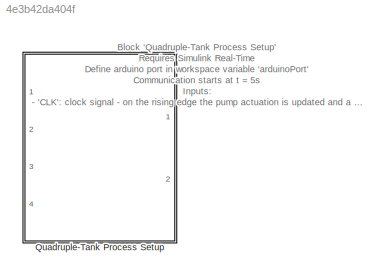
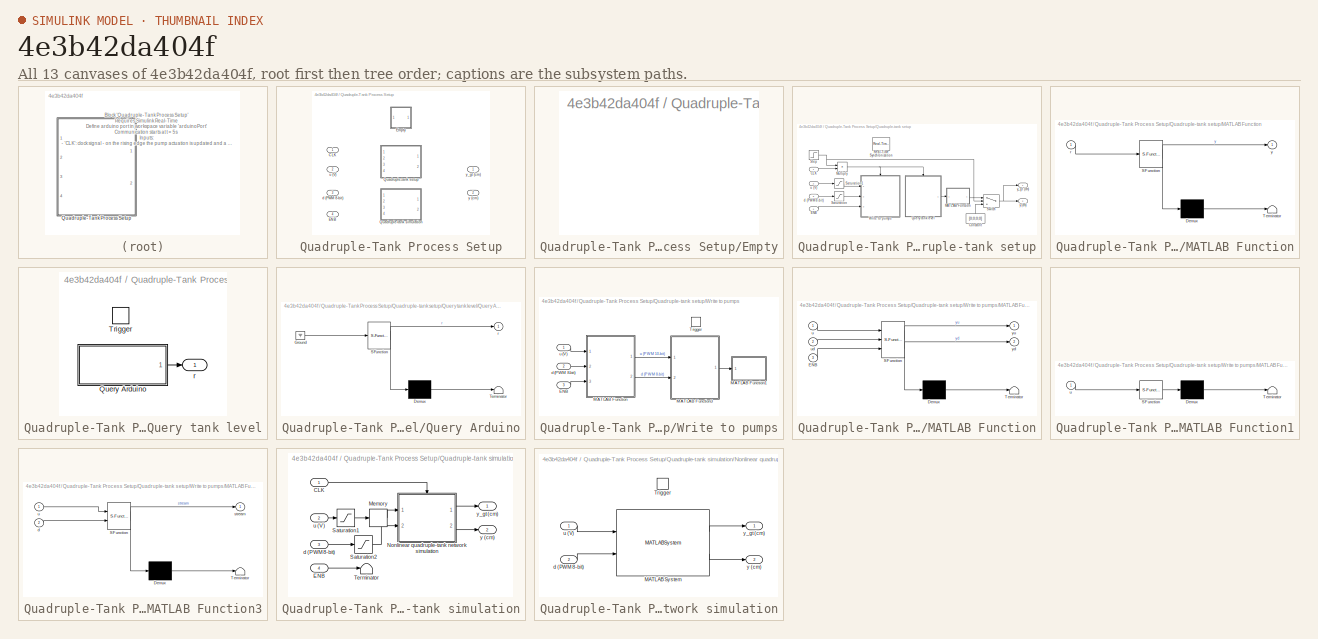
[diagram: thumbnail index - all 13 canvases of the model, root first then tree order]
MODEL slx_4e3b42da404f
KIND model
CONFIG AbsTol = auto
CONFIG EnableMultiTasking = off
CONFIG FixedStep = 0.5
CONFIG MaxStep = auto
CONFIG MinStep = auto
CONFIG RelTol = 1e-3
CONFIG SampleTimeConstraint = Unconstrained
CONFIG SolverName = FixedStepAuto
CONFIG StartTime = 0.0
CONFIG StopTime = inf
BLOCK [SubSystem] Quadruple-Tank Process Setup
  InitFcn = % Load parameters\ncte = quadrupleLoadParameters();\n% Select simulation mode if unspecified\nif ~exist('experimentalSetup')\nexperimentalSetup = false;\nend\nif experimentalSetup\nif exist('arduinoPort')\nif ~isempty(instrfind)\nfclose(instrfind);\ndelete(instrfind);\nend\narduino = serial(arduinoPort,...\n                'BaudRate',9600,...\n                'ByteOrder','bigEndian',...\n                'DataBit...<+223ch>
  Ports = [4, 2]
  RequestExecContextInheritance = off
  StopFcn = if experimentalSetup\nfclose(arduino);\nend
  Variant = on
BLOCK [Inport] Quadruple-Tank Process Setup/CLK
BLOCK [Inport] Quadruple-Tank Process Setup/ENB
  Port = 4
BLOCK [SubSystem] Quadruple-Tank Process Setup/Empty
  Ports = []
  RequestExecContextInheritance = off
  VariantControl = %
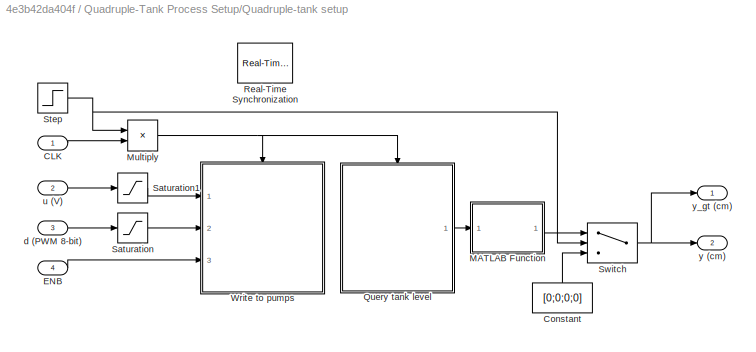
BLOCK [SubSystem] Quadruple-Tank Process Setup/Quadruple-tank setup
  Ports = [4, 2]
  RequestExecContextInheritance = off
  VariantControl = experimentalSetup == true
BLOCK [Inport] Quadruple-Tank Process Setup/Quadruple-tank setup/CLK
BLOCK [Constant] Quadruple-Tank Process Setup/Quadruple-tank setup/Constant
  NameLocation = right
  Value = [0;0;0;0]
BLOCK [Inport] Quadruple-Tank Process Setup/Quadruple-tank setup/ENB
  Port = 4
BLOCK [SubSystem] Quadruple-Tank Process Setup/Quadruple-tank setup/MATLAB Function
  ErrorFcn = Stateflow.Translate.translate
  PermitHierarchicalResolution = ExplicitOnly
  Ports = [1, 1]
  RequestExecContextInheritance = off
  SFBlockType = MATLAB Function
  TreatAsAtomicUnit = on
BLOCK [Demux] Quadruple-Tank Process Setup/Quadruple-tank setup/MATLAB Function/ Demux 
  Outputs = 1
  Ports = [1, 1]
BLOCK [S-Function] Quadruple-Tank Process Setup/Quadruple-tank setup/MATLAB Function/ SFunction 
  EnableBusSupport = off
  FunctionName = sf_sfun
  Parameters = cte
  PortCounts = [1 2]
  Ports = [1, 2]
  SFcnIsStateOwnerBlock = off
  SFunctionDeploymentMode = off
  Tag = Stateflow S-Function 4
BLOCK [Terminator] Quadruple-Tank Process Setup/Quadruple-tank setup/MATLAB Function/ Terminator 
BLOCK [Inport] Quadruple-Tank Process Setup/Quadruple-tank setup/MATLAB Function/r
BLOCK [Outport] Quadruple-Tank Process Setup/Quadruple-tank setup/MATLAB Function/y
  VectorParamsAs1DForOutWhenUnconnected = off
BLOCK [Product] Quadruple-Tank Process Setup/Quadruple-tank setup/Multiply
  Ports = [2, 1]
BLOCK [SubSystem] Quadruple-Tank Process Setup/Quadruple-tank setup/Query tank level
  Ports = [0, 1, 0, 1]
  Priority = 1
  RequestExecContextInheritance = off
BLOCK [SubSystem] Quadruple-Tank Process Setup/Quadruple-tank setup/Query tank level/Query Arduino
  ErrorFcn = Stateflow.Translate.translate
  PermitHierarchicalResolution = ExplicitOnly
  Ports = [0, 1]
  RequestExecContextInheritance = off
  SFBlockType = MATLAB Function
  TreatAsAtomicUnit = on
BLOCK [Demux] Quadruple-Tank Process Setup/Quadruple-tank setup/Query tank level/Query Arduino/ Demux 
  Outputs = 1
  Ports = [1, 1]
BLOCK [Ground] Quadruple-Tank Process Setup/Quadruple-tank setup/Query tank level/Query Arduino/ Ground 
BLOCK [S-Function] Quadruple-Tank Process Setup/Quadruple-tank setup/Query tank level/Query Arduino/ SFunction 
  EnableBusSupport = off
  FunctionName = sf_sfun
  PortCounts = [1 2]
  Ports = [1, 2]
  SFcnIsStateOwnerBlock = off
  SFunctionDeploymentMode = off
  Tag = Stateflow S-Function 2
BLOCK [Terminator] Quadruple-Tank Process Setup/Quadruple-tank setup/Query tank level/Query Arduino/ Terminator 
BLOCK [Outport] Quadruple-Tank Process Setup/Quadruple-tank setup/Query tank level/Query Arduino/r
  VectorParamsAs1DForOutWhenUnconnected = off
BLOCK [TriggerPort] Quadruple-Tank Process Setup/Quadruple-tank setup/Query tank level/Trigger
  PortDimensions = 1
  Ports = []
  StatesWhenEnabling = held
  VariantControl = Variant
BLOCK [Outport] Quadruple-Tank Process Setup/Quadruple-tank setup/Query tank level/r
  VectorParamsAs1DForOutWhenUnconnected = off
BLOCK [Reference] Quadruple-Tank Process Setup/Quadruple-tank setup/Real-Time Synchronization  REF=sldrtlib/Real-Time
Synchronization
  Ports = []
  Priority = 5
  SourceBlock = sldrtlib/Real-Time\nSynchronization
  SourceProductBaseCode = WT
  SourceType = Simulink Desktop Real-Time Synchronization
BLOCK [Saturate] Quadruple-Tank Process Setup/Quadruple-tank setup/Saturation
  LowerLimit = 0
  UpperLimit = 255
BLOCK [Saturate] Quadruple-Tank Process Setup/Quadruple-tank setup/Saturation1
  LowerLimit = cte.uMin
  UpperLimit = cte.uMax
BLOCK [Step] Quadruple-Tank Process Setup/Quadruple-tank setup/Step
  SampleTime = 0
  Time = 5
BLOCK [Switch] Quadruple-Tank Process Setup/Quadruple-tank setup/Switch
  Criteria = u2 ~= 0
  InputSameDT = off
  SaturateOnIntegerOverflow = off
BLOCK [SubSystem] Quadruple-Tank Process Setup/Quadruple-tank setup/Write to pumps
  Ports = [3, 0, 0, 1]
  Priority = 100
  RequestExecContextInheritance = off
BLOCK [Inport] Quadruple-Tank Process Setup/Quadruple-tank setup/Write to pumps/ENB
  Port = 3
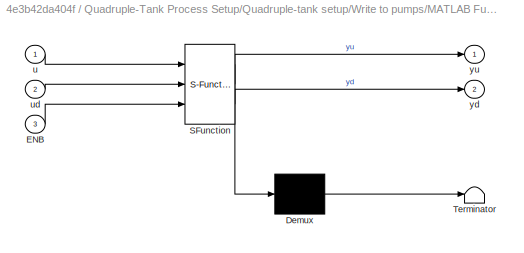
BLOCK [SubSystem] Quadruple-Tank Process Setup/Quadruple-tank setup/Write to pumps/MATLAB Function
  ErrorFcn = Stateflow.Translate.translate
  PermitHierarchicalResolution = ExplicitOnly
  Ports = [3, 2]
  RequestExecContextInheritance = off
  SFBlockType = MATLAB Function
  TreatAsAtomicUnit = on
BLOCK [Demux] Quadruple-Tank Process Setup/Quadruple-tank setup/Write to pumps/MATLAB Function/ Demux 
  Outputs = 1
  Ports = [1, 1]
BLOCK [S-Function] Quadruple-Tank Process Setup/Quadruple-tank setup/Write to pumps/MATLAB Function/ SFunction 
  EnableBusSupport = off
  FunctionName = sf_sfun
  Parameters = cte
  PortCounts = [3 3]
  Ports = [3, 3]
  SFcnIsStateOwnerBlock = off
  SFunctionDeploymentMode = off
  Tag = Stateflow S-Function 3
BLOCK [Terminator] Quadruple-Tank Process Setup/Quadruple-tank setup/Write to pumps/MATLAB Function/ Terminator 
BLOCK [Inport] Quadruple-Tank Process Setup/Quadruple-tank setup/Write to pumps/MATLAB Function/ENB
  Port = 3
BLOCK [Inport] Quadruple-Tank Process Setup/Quadruple-tank setup/Write to pumps/MATLAB Function/u
BLOCK [Inport] Quadruple-Tank Process Setup/Quadruple-tank setup/Write to pumps/MATLAB Function/ud
  Port = 2
BLOCK [Outport] Quadruple-Tank Process Setup/Quadruple-tank setup/Write to pumps/MATLAB Function/yd
  Port = 2
  VectorParamsAs1DForOutWhenUnconnected = off
BLOCK [Outport] Quadruple-Tank Process Setup/Quadruple-tank setup/Write to pumps/MATLAB Function/yu
  VectorParamsAs1DForOutWhenUnconnected = off
BLOCK [SubSystem] Quadruple-Tank Process Setup/Quadruple-tank setup/Write to pumps/MATLAB Function1
  ErrorFcn = Stateflow.Translate.translate
  PermitHierarchicalResolution = ExplicitOnly
  Ports = [1]
  RequestExecContextInheritance = off
  SFBlockType = MATLAB Function
  TreatAsAtomicUnit = on
BLOCK [Demux] Quadruple-Tank Process Setup/Quadruple-tank setup/Write to pumps/MATLAB Function1/ Demux 
  Outputs = 1
  Ports = [1, 1]
BLOCK [S-Function] Quadruple-Tank Process Setup/Quadruple-tank setup/Write to pumps/MATLAB Function1/ SFunction 
  EnableBusSupport = off
  FunctionName = sf_sfun
  PortCounts = [1 1]
  Ports = [1, 1]
  SFcnIsStateOwnerBlock = off
  SFunctionDeploymentMode = off
  Tag = Stateflow S-Function 1
BLOCK [Terminator] Quadruple-Tank Process Setup/Quadruple-tank setup/Write to pumps/MATLAB Function1/ Terminator 
BLOCK [Inport] Quadruple-Tank Process Setup/Quadruple-tank setup/Write to pumps/MATLAB Function1/u
BLOCK [SubSystem] Quadruple-Tank Process Setup/Quadruple-tank setup/Write to pumps/MATLAB Function3
  ErrorFcn = Stateflow.Translate.translate
  PermitHierarchicalResolution = ExplicitOnly
  Ports = [2, 1]
  RequestExecContextInheritance = off
  SFBlockType = MATLAB Function
  TreatAsAtomicUnit = on
BLOCK [Demux] Quadruple-Tank Process Setup/Quadruple-tank setup/Write to pumps/MATLAB Function3/ Demux 
  Outputs = 1
  Ports = [1, 1]
BLOCK [S-Function] Quadruple-Tank Process Setup/Quadruple-tank setup/Write to pumps/MATLAB Function3/ SFunction 
  EnableBusSupport = off
  FunctionName = sf_sfun
  PortCounts = [2 2]
  Ports = [2, 2]
  SFcnIsStateOwnerBlock = off
  SFunctionDeploymentMode = off
  Tag = Stateflow S-Function 5
BLOCK [Terminator] Quadruple-Tank Process Setup/Quadruple-tank setup/Write to pumps/MATLAB Function3/ Terminator 
BLOCK [Inport] Quadruple-Tank Process Setup/Quadruple-tank setup/Write to pumps/MATLAB Function3/d
  Port = 2
BLOCK [Outport] Quadruple-Tank Process Setup/Quadruple-tank setup/Write to pumps/MATLAB Function3/stream
  VectorParamsAs1DForOutWhenUnconnected = off
BLOCK [Inport] Quadruple-Tank Process Setup/Quadruple-tank setup/Write to pumps/MATLAB Function3/u
BLOCK [TriggerPort] Quadruple-Tank Process Setup/Quadruple-tank setup/Write to pumps/Trigger
  PortDimensions = 1
  Ports = []
  StatesWhenEnabling = held
  VariantControl = Variant
BLOCK [Inport] Quadruple-Tank Process Setup/Quadruple-tank setup/Write to pumps/d (PWM 8-bit)
  Port = 2
BLOCK [Inport] Quadruple-Tank Process Setup/Quadruple-tank setup/Write to pumps/u (V)
BLOCK [Inport] Quadruple-Tank Process Setup/Quadruple-tank setup/d (PWM 8-bit)
  Port = 3
BLOCK [Inport] Quadruple-Tank Process Setup/Quadruple-tank setup/u (V)
  Port = 2
BLOCK [Outport] Quadruple-Tank Process Setup/Quadruple-tank setup/y (cm)
  Port = 2
  SignalType = real
  VarSizeSig = No
  VectorParamsAs1DForOutWhenUnconnected = off
BLOCK [Outport] Quadruple-Tank Process Setup/Quadruple-tank setup/y_gt (cm)
  SignalType = real
  VarSizeSig = No
  VectorParamsAs1DForOutWhenUnconnected = off
BLOCK [SubSystem] Quadruple-Tank Process Setup/Quadruple-tank simulation
  Ports = [4, 2]
  Priority = 4
  RequestExecContextInheritance = off
  VariantControl = experimentalSetup == false
BLOCK [Inport] Quadruple-Tank Process Setup/Quadruple-tank simulation/CLK
BLOCK [Inport] Quadruple-Tank Process Setup/Quadruple-tank simulation/ENB
  Port = 4
BLOCK [Memory] Quadruple-Tank Process Setup/Quadruple-tank simulation/Memory
BLOCK [SubSystem] Quadruple-Tank Process Setup/Quadruple-tank simulation/Nonlinear quadruple-tank network simulation
  Ports = [2, 2, 0, 1]
  Priority = 10
  RequestExecContextInheritance = off
BLOCK [MATLABSystem] Quadruple-Tank Process Setup/Quadruple-tank simulation/Nonlinear quadruple-tank network simulation/MATLAB System
  MaskDisplay = disp('quadrupleSimObj');\nport_label('input',1,'u');\nport_label('input',2,'d');\nport_label('output',1,'y_gt');\nport_label('output',2,'y');
  MaskType = quadrupleSimObj
  Ports = [2, 2]
  SimulateUsing = Interpreted execution
  System = quadrupleSimObj
BLOCK [TriggerPort] Quadruple-Tank Process Setup/Quadruple-tank simulation/Nonlinear quadruple-tank network simulation/Trigger
  PortDimensions = 1
  Ports = []
  StatesWhenEnabling = held
  VariantControl = Variant
BLOCK [Inport] Quadruple-Tank Process Setup/Quadruple-tank simulation/Nonlinear quadruple-tank network simulation/d (PWM 8-bit)
  Port = 2
BLOCK [Inport] Quadruple-Tank Process Setup/Quadruple-tank simulation/Nonlinear quadruple-tank network simulation/u (V)
BLOCK [Outport] Quadruple-Tank Process Setup/Quadruple-tank simulation/Nonlinear quadruple-tank network simulation/y (cm)
  Port = 2
  VectorParamsAs1DForOutWhenUnconnected = off
BLOCK [Outport] Quadruple-Tank Process Setup/Quadruple-tank simulation/Nonlinear quadruple-tank network simulation/y_gt (cm)
  VectorParamsAs1DForOutWhenUnconnected = off
BLOCK [Saturate] Quadruple-Tank Process Setup/Quadruple-tank simulation/Saturation1
  LowerLimit = cte.uMin
  UpperLimit = cte.uMax
BLOCK [Saturate] Quadruple-Tank Process Setup/Quadruple-tank simulation/Saturation2
  LowerLimit = 0
  UpperLimit = 2^8-1
BLOCK [Terminator] Quadruple-Tank Process Setup/Quadruple-tank simulation/Terminator
BLOCK [Inport] Quadruple-Tank Process Setup/Quadruple-tank simulation/d (PWM 8-bit)
  Port = 3
BLOCK [Inport] Quadruple-Tank Process Setup/Quadruple-tank simulation/u (V)
  Port = 2
BLOCK [Outport] Quadruple-Tank Process Setup/Quadruple-tank simulation/y (cm)
  Port = 2
  VectorParamsAs1DForOutWhenUnconnected = off
BLOCK [Outport] Quadruple-Tank Process Setup/Quadruple-tank simulation/y_gt (cm)
  VectorParamsAs1DForOutWhenUnconnected = off
BLOCK [Inport] Quadruple-Tank Process Setup/d (PWM 8-bit)
  Port = 3
BLOCK [Inport] Quadruple-Tank Process Setup/u (V)
  Port = 2
BLOCK [Outport] Quadruple-Tank Process Setup/y (cm)
  Port = 2
  VectorParamsAs1DForOutWhenUnconnected = off
BLOCK [Outport] Quadruple-Tank Process Setup/y_gt (cm)
  VectorParamsAs1DForOutWhenUnconnected = off
ANNOTATION (root): Block 'Quadruple-Tank Process Setup ' Requires Simulink Real-Time Define arduino port in workspace variable 'arduinoPort' Communication starts at t = 5s Inputs: - ' CLK' : clock signal - on the rising edge the pump actuation is updated and a water-level measurement is taken; - ' u (V) ': actuation signal - 2x1 vector of actuation pump voltage; - 'd (PWM 8-bit) ': disturbance pumps signal - 2x1 vec...<+2871ch>
LINE Quadruple-Tank Process Setup/Quadruple-tank setup/CLK:1 -> Quadruple-Tank Process Setup/Quadruple-tank setup/Multiply:2
LINE Quadruple-Tank Process Setup/Quadruple-tank setup/Constant:1 -> Quadruple-Tank Process Setup/Quadruple-tank setup/Switch:3
LINE Quadruple-Tank Process Setup/Quadruple-tank setup/ENB:1 -> Quadruple-Tank Process Setup/Quadruple-tank setup/Write to pumps:3
LINE Quadruple-Tank Process Setup/Quadruple-tank setup/MATLAB Function:1 -> Quadruple-Tank Process Setup/Quadruple-tank setup/Switch:1
NET Quadruple-Tank Process Setup/Quadruple-tank setup/Multiply:1 -> Quadruple-Tank Process Setup/Quadruple-tank setup/Query tank level:trigger, Quadruple-Tank Process Setup/Quadruple-tank setup/Write to pumps:trigger
LINE Quadruple-Tank Process Setup/Quadruple-tank setup/Query tank level/Query Arduino:1 -> Quadruple-Tank Process Setup/Quadruple-tank setup/Query tank level/r:1
LINE Quadruple-Tank Process Setup/Quadruple-tank setup/Query tank level:1 -> Quadruple-Tank Process Setup/Quadruple-tank setup/MATLAB Function:1
LINE Quadruple-Tank Process Setup/Quadruple-tank setup/Saturation1:1 -> Quadruple-Tank Process Setup/Quadruple-tank setup/Write to pumps:1
LINE Quadruple-Tank Process Setup/Quadruple-tank setup/Saturation:1 -> Quadruple-Tank Process Setup/Quadruple-tank setup/Write to pumps:2
NET Quadruple-Tank Process Setup/Quadruple-tank setup/Step:1 -> Quadruple-Tank Process Setup/Quadruple-tank setup/Multiply:1, Quadruple-Tank Process Setup/Quadruple-tank setup/Switch:2
NET Quadruple-Tank Process Setup/Quadruple-tank setup/Switch:1 -> Quadruple-Tank Process Setup/Quadruple-tank setup/y (cm):1, Quadruple-Tank Process Setup/Quadruple-tank setup/y_gt (cm):1
LINE Quadruple-Tank Process Setup/Quadruple-tank setup/Write to pumps/ENB:1 -> Quadruple-Tank Process Setup/Quadruple-tank setup/Write to pumps/MATLAB Function:3
LINE Quadruple-Tank Process Setup/Quadruple-tank setup/Write to pumps/MATLAB Function3:1 -> Quadruple-Tank Process Setup/Quadruple-tank setup/Write to pumps/MATLAB Function1:1
LINE Quadruple-Tank Process Setup/Quadruple-tank setup/Write to pumps/MATLAB Function:1 -> Quadruple-Tank Process Setup/Quadruple-tank setup/Write to pumps/MATLAB Function3:1
LINE Quadruple-Tank Process Setup/Quadruple-tank setup/Write to pumps/MATLAB Function:2 -> Quadruple-Tank Process Setup/Quadruple-tank setup/Write to pumps/MATLAB Function3:2
LINE Quadruple-Tank Process Setup/Quadruple-tank setup/Write to pumps/d (PWM 8-bit):1 -> Quadruple-Tank Process Setup/Quadruple-tank setup/Write to pumps/MATLAB Function:2
LINE Quadruple-Tank Process Setup/Quadruple-tank setup/Write to pumps/u (V):1 -> Quadruple-Tank Process Setup/Quadruple-tank setup/Write to pumps/MATLAB Function:1
LINE Quadruple-Tank Process Setup/Quadruple-tank setup/d (PWM 8-bit):1 -> Quadruple-Tank Process Setup/Quadruple-tank setup/Saturation:1
LINE Quadruple-Tank Process Setup/Quadruple-tank setup/u (V):1 -> Quadruple-Tank Process Setup/Quadruple-tank setup/Saturation1:1
LINE Quadruple-Tank Process Setup/Quadruple-tank simulation/CLK:1 -> Quadruple-Tank Process Setup/Quadruple-tank simulation/Nonlinear quadruple-tank network simulation:trigger
LINE Quadruple-Tank Process Setup/Quadruple-tank simulation/ENB:1 -> Quadruple-Tank Process Setup/Quadruple-tank simulation/Terminator:1
LINE Quadruple-Tank Process Setup/Quadruple-tank simulation/Memory:1 -> Quadruple-Tank Process Setup/Quadruple-tank simulation/Nonlinear quadruple-tank network simulation:1
LINE Quadruple-Tank Process Setup/Quadruple-tank simulation/Nonlinear quadruple-tank network simulation/MATLAB System:1 -> Quadruple-Tank Process Setup/Quadruple-tank simulation/Nonlinear quadruple-tank network simulation/y_gt (cm):1
LINE Quadruple-Tank Process Setup/Quadruple-tank simulation/Nonlinear quadruple-tank network simulation/MATLAB System:2 -> Quadruple-Tank Process Setup/Quadruple-tank simulation/Nonlinear quadruple-tank network simulation/y (cm):1
LINE Quadruple-Tank Process Setup/Quadruple-tank simulation/Nonlinear quadruple-tank network simulation/d (PWM 8-bit):1 -> Quadruple-Tank Process Setup/Quadruple-tank simulation/Nonlinear quadruple-tank network simulation/MATLAB System:2
LINE Quadruple-Tank Process Setup/Quadruple-tank simulation/Nonlinear quadruple-tank network simulation/u (V):1 -> Quadruple-Tank Process Setup/Quadruple-tank simulation/Nonlinear quadruple-tank network simulation/MATLAB System:1
LINE Quadruple-Tank Process Setup/Quadruple-tank simulation/Nonlinear quadruple-tank network simulation:1 -> Quadruple-Tank Process Setup/Quadruple-tank simulation/y_gt (cm):1
LINE Quadruple-Tank Process Setup/Quadruple-tank simulation/Nonlinear quadruple-tank network simulation:2 -> Quadruple-Tank Process Setup/Quadruple-tank simulation/y (cm):1
LINE Quadruple-Tank Process Setup/Quadruple-tank simulation/Saturation1:1 -> Quadruple-Tank Process Setup/Quadruple-tank simulation/Memory:1
LINE Quadruple-Tank Process Setup/Quadruple-tank simulation/Saturation2:1 -> Quadruple-Tank Process Setup/Quadruple-tank simulation/Nonlinear quadruple-tank network simulation:2
LINE Quadruple-Tank Process Setup/Quadruple-tank simulation/d (PWM 8-bit):1 -> Quadruple-Tank Process Setup/Quadruple-tank simulation/Saturation2:1
LINE Quadruple-Tank Process Setup/Quadruple-tank simulation/u (V):1 -> Quadruple-Tank Process Setup/Quadruple-tank simulation/Saturation1:1
note: NET lines group one-source signal fan-out (src -> all destinations, sorted); 1:1 wires keep LINE
CHART Quadruple-Tank Process Setup/Quadruple-tank setup/Write to pumps/MATLAB Function1 states=1 transitions=1
  STATE_LABEL 'eML_blk_kernel()'
  STATE_LABEL 'SCRIPT:\nfunction toArduino(u)\n% Find arduino serial object\ncoder.extrinsic(\'instrfind\'); \npersistent arduino;\nif isempty(arduino)\n    arduino = instrfind(\'Status\',\'open\',\'Baud\',9600);\nend\n% Send metadata\nfprintf(arduino, "#16");\n% Send actuation inputs\nfwrite(arduino,u,\'uint16\');\nend\n'
CHART Quadruple-Tank Process Setup/Quadruple-tank setup/Query tank level/Query Arduino states=1 transitions=1
  STATE_LABEL 'eML_blk_kernel()'
  STATE_LABEL "SCRIPT:\nfunction r = queryArduino()\n% Find arduino serial object\ncoder.extrinsic('instrfind'); \npersistent arduino;\nif isempty(arduino)\n    arduino = instrfind('Status','open','Baud',9600);\nend\n\n% Query arduino\nfprintf(arduino, '$');\n% Ignore metadata\nfread(arduino,[4 1],'uint8');\n% Read water-level data\naux = fread(arduino,[5 1],'uint16');\nu = zeros(5,1);\nu(5) = double(aux(5,1));\nfor i = 1:4\n    ...<+74ch>"
CHART Quadruple-Tank Process Setup/Quadruple-tank setup/Write to pumps/MATLAB Function states=1 transitions=1
  STATE_LABEL 'eML_blk_kernel()'
  STATE_LABEL 'SCRIPT:\nfunction [yu,yd] = pwm_u(u,ud,ENB,cte)\n% In u in volts\nif ENB\n    for i = 1:2\n        u(i) = 1023*(cte.c(1,i)*cte.c(3,i)-cte.c(2,i)*cte.k(i)*u(i))/(cte.c(1,i)-cte.k(i)*u(i));\n    end\n    yu = u;\n    yd = ud;\nelse\n    yu = zeros(2,1);\n    yd = zeros(2,1);\nend\n\n\n\n'
CHART Quadruple-Tank Process Setup/Quadruple-tank setup/MATLAB Function states=1 transitions=1
  STATE_LABEL 'eML_blk_kernel()'
  STATE_LABEL 'SCRIPT:\nfunction y = water_level(r,cte)\ny = zeros(4,1);\nfor i = 1:4\n   y(i) = r(i)*cte.dh_dr(i)+cte.h0(i);\nend'
CHART Quadruple-Tank Process Setup/Quadruple-tank setup/Write to pumps/MATLAB Function3 states=1 transitions=1
  STATE_LABEL 'eML_blk_kernel()'
  STATE_LABEL 'SCRIPT:\nfunction stream = packPWM10bit(u,d)\n    %% Saturation \n    u(u<0) = 0;\n    u(u>2^10-1) =2^10-1;\n    d(d<0) = 0;\n    d(d>2^8-1) =2^8-1;\n    %% Pack PWM \n    stream = uint16(zeros(3,1));\n    % First two actuation pump signals of 10 bits are sent individually\n    stream(1:2) = uint16(round(u)); \n    % Two disturbance pump signals of 8 bits are sent together as a 16 bit\n    % uint16_t\n    stre...<+53ch>'
CHART  states=0 transitions=0
CHART  states=0 transitions=0
CHART  states=0 transitions=0
CHART  states=0 transitions=0
CHART  states=0 transitions=0
